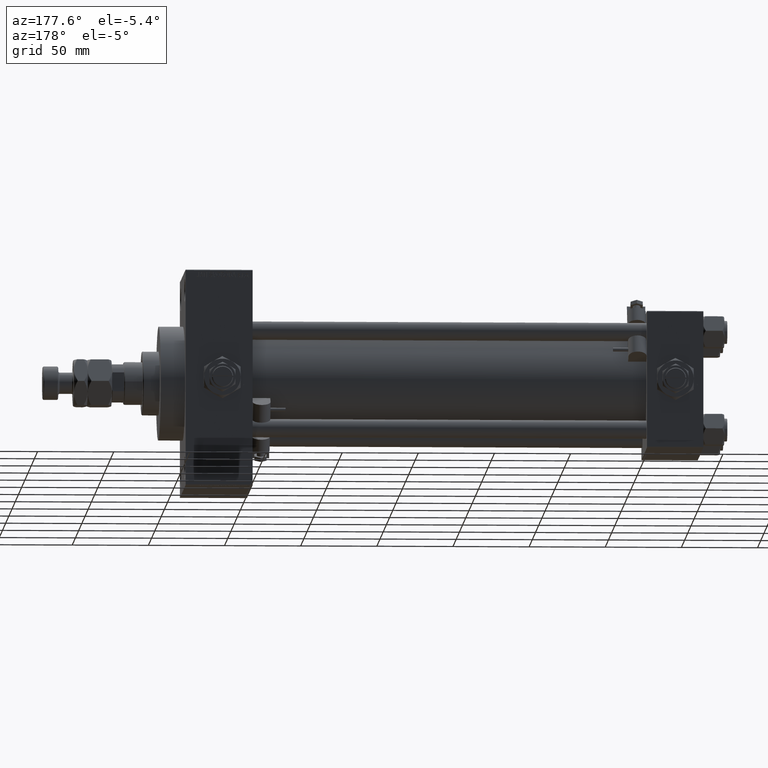
[diagram: clean part render]
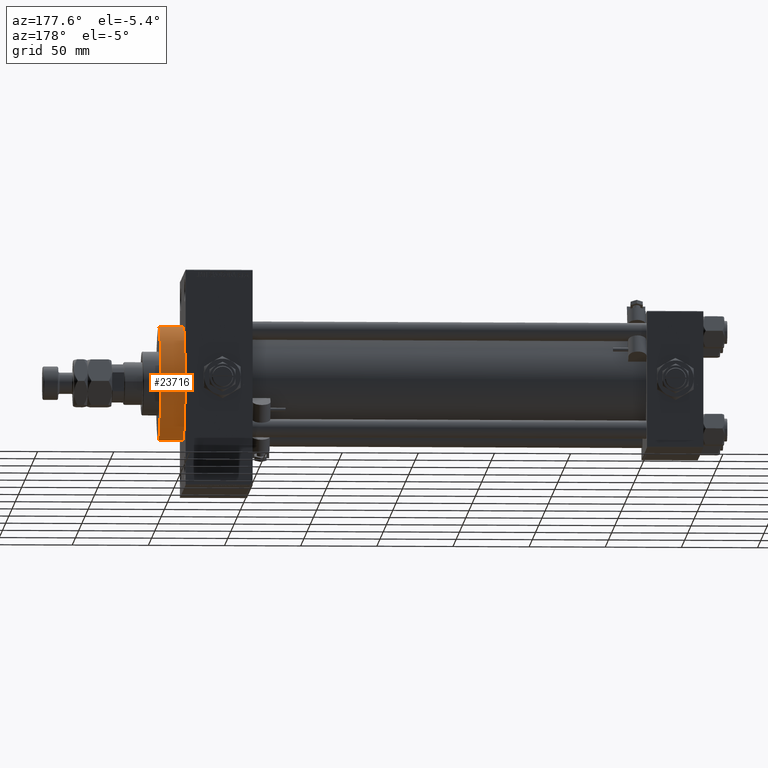
[diagram: same view with one face highlighted and labeled with its STEP entity id]
A machine part, auxiliary view. The second image highlights one B-rep face of the part: STEP entity #23716.
In plain terms, the highlighted cylindrical surface (partial cylindrical patch) has radius 37.5 mm, axis along (-1, -0, -0).
Its self-contained STEP definition (entity closure, byte-faithful):
#475 = DIRECTION ( 'NONE',  ( -1.000000000000000000, -0.000000000000000000, -0.000000000000000000 ) ) ;
#975 = CIRCLE ( 'NONE', #36293, 37.50000000000000711 ) ;
#1054 = ORIENTED_EDGE ( 'NONE', *, *, #4755, .F. ) ;
#1055 = AXIS2_PLACEMENT_3D ( 'NONE', #16179, #32234, #48248 ) ;
#3966 = DIRECTION ( 'NONE',  ( 1.000000000000000000, 0.000000000000000000, 0.000000000000000000 ) ) ;
#4755 = EDGE_CURVE ( 'NONE', #51180, #32938, #36264, .T. ) ;
#4779 = AXIS2_PLACEMENT_3D ( 'NONE', #24184, #8377, #40209 ) ;
#6159 = CARTESIAN_POINT ( 'NONE',  ( 356.0000000000000000, 0.000000000000000000, 37.50000000000000711 ) ) ;
#7201 = CARTESIAN_POINT ( 'NONE',  ( 356.0000000000000000, 4.592425496802575156E-15, -37.50000000000000711 ) ) ;
#7657 = DIRECTION ( 'NONE',  ( 0.000000000000000000, 0.000000000000000000, -1.000000000000000000 ) ) ;
#7809 = CIRCLE ( 'NONE', #1055, 37.50000000000000711 ) ;
#8122 = FACE_OUTER_BOUND ( 'NONE', #11045, .T. ) ;
#8377 = DIRECTION ( 'NONE',  ( -1.000000000000000000, -0.000000000000000000, -0.000000000000000000 ) ) ;
#8637 = CARTESIAN_POINT ( 'NONE',  ( 356.0000000000000000, 0.000000000000000000, 37.50000000000000711 ) ) ;
#9570 = CARTESIAN_POINT ( 'NONE',  ( 339.9999999999999432, 4.592425496802575156E-15, -37.50000000000000711 ) ) ;
#10903 = EDGE_CURVE ( 'NONE', #47419, #32938, #7809, .T. ) ;
#11045 = EDGE_LOOP ( 'NONE', ( #21945, #41513, #34166, #1054 ) ) ;
#16179 = CARTESIAN_POINT ( 'NONE',  ( 339.9999999999999432, 0.000000000000000000, 0.000000000000000000 ) ) ;
#21112 = CARTESIAN_POINT ( 'NONE',  ( 339.9999999999999432, 0.000000000000000000, 37.50000000000000711 ) ) ;
#21945 = ORIENTED_EDGE ( 'NONE', *, *, #29098, .F. ) ;
#23716 = ADVANCED_FACE ( 'NONE', ( #8122 ), #44396, .T. ) ;
#24184 = CARTESIAN_POINT ( 'NONE',  ( 356.0000000000000000, 0.000000000000000000, 0.000000000000000000 ) ) ;
#26702 = DIRECTION ( 'NONE',  ( -1.000000000000000000, -0.000000000000000000, -0.000000000000000000 ) ) ;
#27200 = VECTOR ( 'NONE', #26702, 1000.000000000000000 ) ;
#28173 = VERTEX_POINT ( 'NONE', #32799 ) ;
#29098 = EDGE_CURVE ( 'NONE', #28173, #51180, #975, .T. ) ;
#30384 = VECTOR ( 'NONE', #475, 1000.000000000000000 ) ;
#32234 = DIRECTION ( 'NONE',  ( 1.000000000000000000, 0.000000000000000000, 0.000000000000000000 ) ) ;
#32799 = CARTESIAN_POINT ( 'NONE',  ( 356.0000000000000000, 4.592425496802575156E-15, -37.50000000000000711 ) ) ;
#32938 = VERTEX_POINT ( 'NONE', #21112 ) ;
#34166 = ORIENTED_EDGE ( 'NONE', *, *, #10903, .T. ) ;
#36178 = EDGE_CURVE ( 'NONE', #28173, #47419, #38252, .T. ) ;
#36264 = LINE ( 'NONE', #8637, #30384 ) ;
#36293 = AXIS2_PLACEMENT_3D ( 'NONE', #39496, #3966, #7657 ) ;
#38252 = LINE ( 'NONE', #7201, #27200 ) ;
#39496 = CARTESIAN_POINT ( 'NONE',  ( 356.0000000000000000, 0.000000000000000000, 0.000000000000000000 ) ) ;
#40209 = DIRECTION ( 'NONE',  ( 0.000000000000000000, 0.000000000000000000, 1.000000000000000000 ) ) ;
#41513 = ORIENTED_EDGE ( 'NONE', *, *, #36178, .T. ) ;
#44396 = CYLINDRICAL_SURFACE ( 'NONE', #4779, 37.50000000000000711 ) ;
#47419 = VERTEX_POINT ( 'NONE', #9570 ) ;
#48248 = DIRECTION ( 'NONE',  ( 0.000000000000000000, 0.000000000000000000, -1.000000000000000000 ) ) ;
#51180 = VERTEX_POINT ( 'NONE', #6159 ) ;